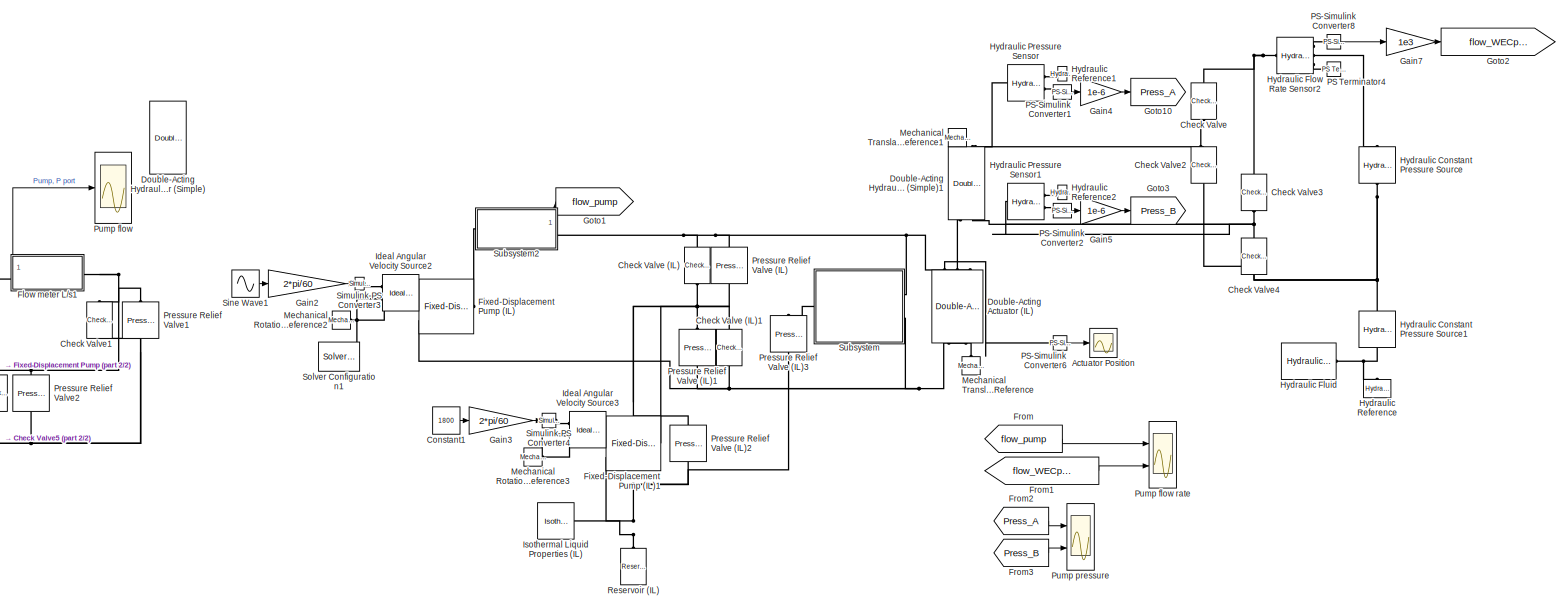
[diagram: root canvas - part 1/2, most of the canvas]
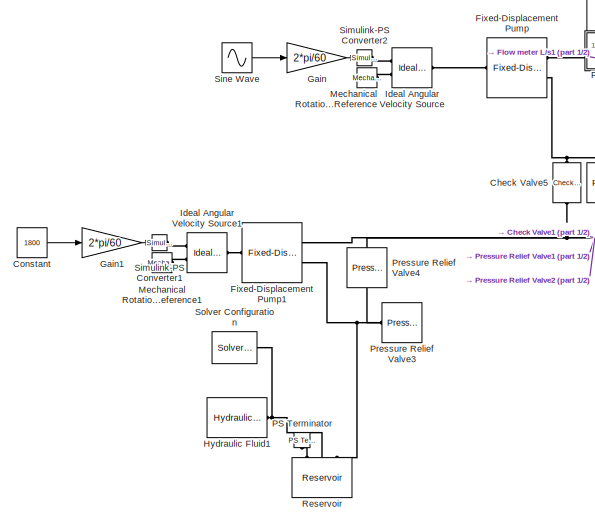
[diagram: root canvas - part 2/2, middle left region]
MODEL slx_42deeb5695fa
KIND model
CONFIG AbsTol = auto
CONFIG EnableMultiTasking = off
CONFIG FixedStep = auto
CONFIG InitFcn = addpath('SCADA'); \ninitFcn_SCADA;
CONFIG MaxStep = auto
CONFIG MinStep = auto
CONFIG RelTol = 1e-3
CONFIG SampleTimeConstraint = Unconstrained
CONFIG SolverName = VariableStepAuto
CONFIG StartTime = 0.0
CONFIG StopTime = 10.0
BLOCK [Scope] Actuator Position
  Floating = off
  NumInputPorts = 1
  Ports = [1]
  ScopeSpecificationString = Simulink.scopes.TimeScopeBlockCfg('CurrentConfiguration', extmgr.ConfigurationSet(extmgr.Configuration('Core','General UI',true),extmgr.Configuration('Core','Source UI',true),extmgr.Configuration('Sources','WiredSimulink',true,'DataLoggingVariableName','ScopeData1'),extmgr.Configuration('Visuals','Time Domain',true,'SerializedDisplays',{struct('MinYLimReal','0.49774','MaxYLimReal','0.50224','YLabe...<+1453ch>
BLOCK [Reference] Check Valve  REF=sh_lib/Valves/Directional Valves/Check Valve
  NameLocation = right
  Ports = [0, 0, 0, 0, 0, 1, 1]
  SourceBlock = sh_lib/Valves/Directional Valves/Check Valve
  SourceProductBaseCode = SH
  SourceType = Check Valve
BLOCK [Reference] Check Valve (IL)  REF=SimscapeFluids_lib/Isothermal Liquid/Valves & Orifices/Directional Control
Valves/Check Valve (IL)
  NameLocation = right
  Ports = [0, 0, 0, 0, 0, 1, 1]
  SourceBlock = SimscapeFluids_lib/Isothermal Liquid/Valves & Orifices/Directional Control\nValves/Check Valve (IL)
  SourceProductBaseCode = SH
  SourceType = Check Valve (IL)
BLOCK [Reference] Check Valve (IL)1  REF=SimscapeFluids_lib/Isothermal Liquid/Valves & Orifices/Directional Control
Valves/Check Valve (IL)
  NameLocation = left
  Ports = [0, 0, 0, 0, 0, 1, 1]
  SourceBlock = SimscapeFluids_lib/Isothermal Liquid/Valves & Orifices/Directional Control\nValves/Check Valve (IL)
  SourceProductBaseCode = SH
  SourceType = Check Valve (IL)
BLOCK [Reference] Check Valve1  REF=sh_lib/Valves/Directional Valves/Check Valve
  Commented = on
  NameLocation = left
  Ports = [0, 0, 0, 0, 0, 1, 1]
  SourceBlock = sh_lib/Valves/Directional Valves/Check Valve
  SourceProductBaseCode = SH
  SourceType = Check Valve
BLOCK [Reference] Check Valve2  REF=sh_lib/Valves/Directional Valves/Check Valve
  NameLocation = right
  Ports = [0, 0, 0, 0, 0, 1, 1]
  SourceBlock = sh_lib/Valves/Directional Valves/Check Valve
  SourceProductBaseCode = SH
  SourceType = Check Valve
BLOCK [Reference] Check Valve3  REF=sh_lib/Valves/Directional Valves/Check Valve
  NameLocation = right
  Ports = [0, 0, 0, 0, 0, 1, 1]
  SourceBlock = sh_lib/Valves/Directional Valves/Check Valve
  SourceProductBaseCode = SH
  SourceType = Check Valve
BLOCK [Reference] Check Valve4  REF=sh_lib/Valves/Directional Valves/Check Valve
  NameLocation = right
  Ports = [0, 0, 0, 0, 0, 1, 1]
  SourceBlock = sh_lib/Valves/Directional Valves/Check Valve
  SourceProductBaseCode = SH
  SourceType = Check Valve
BLOCK [Reference] Check Valve5  REF=sh_lib/Valves/Directional Valves/Check Valve
  Commented = on
  NameLocation = left
  Ports = [0, 0, 0, 0, 0, 1, 1]
  SourceBlock = sh_lib/Valves/Directional Valves/Check Valve
  SourceProductBaseCode = SH
  SourceType = Check Valve
BLOCK [Constant] Constant
  Commented = on
  Value = 1800
BLOCK [Constant] Constant1
  Value = 1800
BLOCK [Reference] Double-Acting Actuator (IL)  REF=SimscapeFluids_lib/Isothermal Liquid/Actuators/Double-Acting
Actuator (IL)
  NameLocation = left
  Ports = [0, 0, 0, 0, 0, 2, 3]
  SourceBlock = SimscapeFluids_lib/Isothermal Liquid/Actuators/Double-Acting\nActuator (IL)
  SourceProductBaseCode = SH
  SourceType = Double-Acting\nActuator (IL)
BLOCK [Reference] Double-Acting Hydraulic Cylinder (Simple)  REF=sh_lib/Hydraulic Cylinders/Double-Acting
Hydraulic Cylinder
(Simple)
  Commented = on
  NameLocation = right
  Ports = [0, 0, 0, 0, 0, 2, 2]
  SourceBlock = sh_lib/Hydraulic Cylinders/Double-Acting\nHydraulic Cylinder\n(Simple)
  SourceProductBaseCode = SH
  SourceType = Double-Acting\nHydraulic Cylinder\n(Simple)
BLOCK [Reference] Double-Acting Hydraulic Cylinder (Simple)1  REF=sh_lib/Hydraulic Cylinders/Double-Acting
Hydraulic Cylinder
(Simple)
  NameLocation = right
  Ports = [0, 0, 0, 0, 0, 2, 2]
  SourceBlock = sh_lib/Hydraulic Cylinders/Double-Acting\nHydraulic Cylinder\n(Simple)
  SourceProductBaseCode = SH
  SourceType = Double-Acting\nHydraulic Cylinder\n(Simple)
BLOCK [Reference] Fixed-Displacement Pump  REF=sh_lib/Pumps and Motors/Fixed-Displacement
Pump
  Commented = on
  Ports = [0, 0, 0, 0, 0, 1, 2]
  SourceBlock = sh_lib/Pumps and Motors/Fixed-Displacement\nPump
  SourceProductBaseCode = SH
  SourceType = Fixed-Displacement\nPump
BLOCK [Reference] Fixed-Displacement Pump (IL)  REF=SimscapeFluids_lib/Isothermal Liquid/Pumps & Motors/Fixed-Displacement
Pump (IL)
  NameLocation = top
  Ports = [0, 0, 0, 0, 0, 1, 3]
  SourceBlock = SimscapeFluids_lib/Isothermal Liquid/Pumps & Motors/Fixed-Displacement\nPump (IL)
  SourceProductBaseCode = SH
  SourceType = Fixed-Displacement\nPump (IL)
BLOCK [Reference] Fixed-Displacement Pump (IL)1  REF=SimscapeFluids_lib/Isothermal Liquid/Pumps & Motors/Fixed-Displacement
Pump (IL)
  NameLocation = top
  Ports = [0, 0, 0, 0, 0, 1, 3]
  SourceBlock = SimscapeFluids_lib/Isothermal Liquid/Pumps & Motors/Fixed-Displacement\nPump (IL)
  SourceProductBaseCode = SH
  SourceType = Fixed-Displacement\nPump (IL)
BLOCK [Reference] Fixed-Displacement Pump1  REF=sh_lib/Pumps and Motors/Fixed-Displacement
Pump
  Commented = on
  Ports = [0, 0, 0, 0, 0, 1, 2]
  SourceBlock = sh_lib/Pumps and Motors/Fixed-Displacement\nPump
  SourceProductBaseCode = SH
  SourceType = Fixed-Displacement\nPump
BLOCK [SubSystem] Flow meter L//s1
  Commented = on
  NameLocation = top
  PortSchema = {"entries":[{"content":{"sides":[{"content":{"connectorIds":["RConn1"]},"type":"ConnectorPlacement.EquallySpacedRectSide","uuid":"d44e5720-9e66-471e-94a4-9637237ee7d4"},{"content":{"connectorIds":["LConn1"],"side":"RIGHT"},"type":"ConnectorPlacement.EquallySpacedRectSide","uuid":"c0bd2997-7dbc-4043-b61a-302206a871bf"},{"content":{"connectorIds":["Out1"],"side":"TOP"},"type":"ConnectorPlacement.Equ...<+395ch>
  Ports = [0, 1, 0, 0, 0, 1, 1]
  ReferencedSubsystem = Flow_meter_L_s
  RequestExecContextInheritance = off
BLOCK [From] From
  GotoTag = flow_pump
BLOCK [From] From1
  GotoTag = flow_WECpump
BLOCK [From] From2
  GotoTag = Press_A
BLOCK [From] From3
  GotoTag = Press_B
BLOCK [Gain] Gain
  Commented = on
  Gain = 2*pi/60
BLOCK [Gain] Gain1
  Commented = on
  Gain = 2*pi/60
BLOCK [Gain] Gain2
  Gain = 2*pi/60
BLOCK [Gain] Gain3
  Gain = 2*pi/60
BLOCK [Gain] Gain4
  Gain = 1e-6
  NameLocation = top
BLOCK [Gain] Gain5
  Gain = 1e-6
  NameLocation = top
BLOCK [Gain] Gain7
  Gain = 1e3
BLOCK [Goto] Goto1
  GotoTag = flow_pump
BLOCK [Goto] Goto10
  GotoTag = Press_A
BLOCK [Goto] Goto2
  GotoTag = flow_WECpump
BLOCK [Goto] Goto3
  GotoTag = Press_B
BLOCK [Reference] Hydraulic Constant Pressure Source  REF=fl_lib/Hydraulic/Hydraulic Sources/Hydraulic Constant
Pressure Source
  NameLocation = right
  Ports = [0, 0, 0, 0, 0, 1, 1]
  SourceBlock = fl_lib/Hydraulic/Hydraulic Sources/Hydraulic Constant\nPressure Source
  SourceProductBaseCode = PW,SS,VE
  SourceType = Hydraulic Constant\nPressure Source
BLOCK [Reference] Hydraulic Constant Pressure Source1  REF=fl_lib/Hydraulic/Hydraulic Sources/Hydraulic Constant
Pressure Source
  NameLocation = right
  Ports = [0, 0, 0, 0, 0, 1, 1]
  SourceBlock = fl_lib/Hydraulic/Hydraulic Sources/Hydraulic Constant\nPressure Source
  SourceProductBaseCode = PW,SS,VE
  SourceType = Hydraulic Constant\nPressure Source
BLOCK [Reference] Hydraulic Flow Rate Sensor2  REF=fl_lib/Hydraulic/Hydraulic Sensors/Hydraulic Flow Rate
Sensor
  Ports = [0, 0, 0, 0, 0, 1, 3]
  SourceBlock = fl_lib/Hydraulic/Hydraulic Sensors/Hydraulic Flow Rate\nSensor
  SourceProductBaseCode = PW,SS,VE
  SourceType = Hydraulic Flow Rate\nSensor
BLOCK [Reference] Hydraulic Fluid  REF=sh_lib/Hydraulic Utilities/Hydraulic Fluid
  Ports = [0, 0, 0, 0, 0, 0, 1]
  SourceBlock = sh_lib/Hydraulic Utilities/Hydraulic Fluid
  SourceProductBaseCode = SH
  SourceType = Hydraulic Fluid
BLOCK [Reference] Hydraulic Fluid1  REF=sh_lib/Hydraulic Utilities/Hydraulic Fluid
  Commented = on
  Ports = [0, 0, 0, 0, 0, 0, 1]
  SourceBlock = sh_lib/Hydraulic Utilities/Hydraulic Fluid
  SourceProductBaseCode = SH
  SourceType = Hydraulic Fluid
BLOCK [Reference] Hydraulic Pressure Sensor  REF=fl_lib/Hydraulic/Hydraulic Sensors/Hydraulic Pressure
Sensor
  Ports = [0, 0, 0, 0, 0, 1, 2]
  SourceBlock = fl_lib/Hydraulic/Hydraulic Sensors/Hydraulic Pressure\nSensor
  SourceProductBaseCode = PW,SS,VE
  SourceType = Hydraulic Pressure\nSensor
BLOCK [Reference] Hydraulic Pressure Sensor1  REF=fl_lib/Hydraulic/Hydraulic Sensors/Hydraulic Pressure
Sensor
  Ports = [0, 0, 0, 0, 0, 1, 2]
  SourceBlock = fl_lib/Hydraulic/Hydraulic Sensors/Hydraulic Pressure\nSensor
  SourceProductBaseCode = PW,SS,VE
  SourceType = Hydraulic Pressure\nSensor
BLOCK [Reference] Hydraulic Reference  REF=fl_lib/Hydraulic/Hydraulic Elements/Hydraulic Reference
  NameLocation = right
  Ports = [0, 0, 0, 0, 0, 1]
  SourceBlock = fl_lib/Hydraulic/Hydraulic Elements/Hydraulic Reference
  SourceProductBaseCode = PW,SS,VE
  SourceType = Hydraulic Reference
BLOCK [Reference] Hydraulic Reference1  REF=fl_lib/Hydraulic/Hydraulic Elements/Hydraulic Reference
  NameLocation = top
  Ports = [0, 0, 0, 0, 0, 1]
  SourceBlock = fl_lib/Hydraulic/Hydraulic Elements/Hydraulic Reference
  SourceProductBaseCode = PW,SS,VE
  SourceType = Hydraulic Reference
BLOCK [Reference] Hydraulic Reference2  REF=fl_lib/Hydraulic/Hydraulic Elements/Hydraulic Reference
  NameLocation = top
  Ports = [0, 0, 0, 0, 0, 1]
  SourceBlock = fl_lib/Hydraulic/Hydraulic Elements/Hydraulic Reference
  SourceProductBaseCode = PW,SS,VE
  SourceType = Hydraulic Reference
BLOCK [Reference] Ideal Angular Velocity Source  REF=fl_lib/Mechanical/Mechanical Sources/Ideal Angular
Velocity Source
  Commented = on
  Ports = [0, 0, 0, 0, 0, 1, 2]
  SourceBlock = fl_lib/Mechanical/Mechanical Sources/Ideal Angular\nVelocity Source
  SourceProductBaseCode = PW,SS,VE
  SourceType = Ideal Angular\nVelocity Source
BLOCK [Reference] Ideal Angular Velocity Source1  REF=fl_lib/Mechanical/Mechanical Sources/Ideal Angular
Velocity Source
  Commented = on
  Ports = [0, 0, 0, 0, 0, 1, 2]
  SourceBlock = fl_lib/Mechanical/Mechanical Sources/Ideal Angular\nVelocity Source
  SourceProductBaseCode = PW,SS,VE
  SourceType = Ideal Angular\nVelocity Source
BLOCK [Reference] Ideal Angular Velocity Source2  REF=fl_lib/Mechanical/Mechanical Sources/Ideal Angular
Velocity Source
  Ports = [0, 0, 0, 0, 0, 1, 2]
  SourceBlock = fl_lib/Mechanical/Mechanical Sources/Ideal Angular\nVelocity Source
  SourceProductBaseCode = PW,SS,VE
  SourceType = Ideal Angular\nVelocity Source
BLOCK [Reference] Ideal Angular Velocity Source3  REF=fl_lib/Mechanical/Mechanical Sources/Ideal Angular
Velocity Source
  Ports = [0, 0, 0, 0, 0, 1, 2]
  SourceBlock = fl_lib/Mechanical/Mechanical Sources/Ideal Angular\nVelocity Source
  SourceProductBaseCode = PW,SS,VE
  SourceType = Ideal Angular\nVelocity Source
BLOCK [Reference] Isothermal Liquid Properties (IL)  REF=fl_lib/Isothermal Liquid/Utilities/Isothermal Liquid
Properties (IL)
  Ports = [0, 0, 0, 0, 0, 0, 1]
  SourceBlock = fl_lib/Isothermal Liquid/Utilities/Isothermal Liquid\nProperties (IL)
  SourceProductBaseCode = PW,SS,VE
  SourceType = Isothermal Liquid\nProperties (IL)
BLOCK [Reference] Mechanical Rotational Reference  REF=fl_lib/Mechanical/Rotational Elements/Mechanical
Rotational Reference
  Commented = on
  Ports = [0, 0, 0, 0, 0, 1]
  SourceBlock = fl_lib/Mechanical/Rotational Elements/Mechanical\nRotational Reference
  SourceProductBaseCode = PW,SS,VE
  SourceType = Mechanical\nRotational Reference
BLOCK [Reference] Mechanical Rotational Reference1  REF=fl_lib/Mechanical/Rotational Elements/Mechanical
Rotational Reference
  Commented = on
  Ports = [0, 0, 0, 0, 0, 1]
  SourceBlock = fl_lib/Mechanical/Rotational Elements/Mechanical\nRotational Reference
  SourceProductBaseCode = PW,SS,VE
  SourceType = Mechanical\nRotational Reference
BLOCK [Reference] Mechanical Rotational Reference2  REF=fl_lib/Mechanical/Rotational Elements/Mechanical
Rotational Reference
  Ports = [0, 0, 0, 0, 0, 1]
  SourceBlock = fl_lib/Mechanical/Rotational Elements/Mechanical\nRotational Reference
  SourceProductBaseCode = PW,SS,VE
  SourceType = Mechanical\nRotational Reference
BLOCK [Reference] Mechanical Rotational Reference3  REF=fl_lib/Mechanical/Rotational Elements/Mechanical
Rotational Reference
  Ports = [0, 0, 0, 0, 0, 1]
  SourceBlock = fl_lib/Mechanical/Rotational Elements/Mechanical\nRotational Reference
  SourceProductBaseCode = PW,SS,VE
  SourceType = Mechanical\nRotational Reference
BLOCK [Reference] Mechanical Translational Reference  REF=fl_lib/Mechanical/Translational
Elements/Mechanical
Translational
Reference
  NameLocation = right
  Ports = [0, 0, 0, 0, 0, 1]
  SourceBlock = fl_lib/Mechanical/Translational\nElements/Mechanical\nTranslational\nReference
  SourceProductBaseCode = PW,SS,VE
  SourceType = Mechanical\nTranslational\nReference
BLOCK [Reference] Mechanical Translational Reference1  REF=fl_lib/Mechanical/Translational
Elements/Mechanical
Translational
Reference
  NameLocation = left
  Ports = [0, 0, 0, 0, 0, 1]
  SourceBlock = fl_lib/Mechanical/Translational\nElements/Mechanical\nTranslational\nReference
  SourceProductBaseCode = PW,SS,VE
  SourceType = Mechanical\nTranslational\nReference
BLOCK [Reference] PS Terminator  REF=fl_lib/Physical Signals/Sinks/PS Terminator
  Commented = on
  NameLocation = right
  Ports = [0, 0, 0, 0, 0, 1]
  SourceBlock = fl_lib/Physical Signals/Sinks/PS Terminator
  SourceProductBaseCode = PW,SS,VE
  SourceType = PS Terminator
BLOCK [Reference] PS Terminator4  REF=fl_lib/Physical Signals/Sinks/PS Terminator
  Ports = [0, 0, 0, 0, 0, 1]
  SourceBlock = fl_lib/Physical Signals/Sinks/PS Terminator
  SourceProductBaseCode = PW,SS,VE
  SourceType = PS Terminator
BLOCK [Reference] PS-Simulink Converter1  REF=nesl_utility/PS-Simulink
Converter
  NameLocation = top
  Ports = [0, 1, 0, 0, 0, 1]
  SourceBlock = nesl_utility/PS-Simulink\nConverter
  SourceProductBaseCode = SS,PW,VE
  SourceType = PS-Simulink\nConverter
BLOCK [Reference] PS-Simulink Converter2  REF=nesl_utility/PS-Simulink
Converter
  NameLocation = top
  Ports = [0, 1, 0, 0, 0, 1]
  SourceBlock = nesl_utility/PS-Simulink\nConverter
  SourceProductBaseCode = SS,PW,VE
  SourceType = PS-Simulink\nConverter
BLOCK [Reference] PS-Simulink Converter6  REF=nesl_utility/PS-Simulink
Converter
  Ports = [0, 1, 0, 0, 0, 1]
  SourceBlock = nesl_utility/PS-Simulink\nConverter
  SourceProductBaseCode = SS,PW,VE
  SourceType = PS-Simulink\nConverter
BLOCK [Reference] PS-Simulink Converter8  REF=nesl_utility/PS-Simulink
Converter
  Ports = [0, 1, 0, 0, 0, 1]
  SourceBlock = nesl_utility/PS-Simulink\nConverter
  SourceProductBaseCode = SS,PW,VE
  SourceType = PS-Simulink\nConverter
BLOCK [Reference] Pressure Relief Valve (IL)  REF=SimscapeFluids_lib/Isothermal Liquid/Valves & Orifices/Pressure Control
Valves/Pressure Relief
Valve (IL)
  NameLocation = left
  Ports = [0, 0, 0, 0, 0, 1, 1]
  SourceBlock = SimscapeFluids_lib/Isothermal Liquid/Valves & Orifices/Pressure Control\nValves/Pressure Relief\nValve (IL)
  SourceProductBaseCode = SH
  SourceType = Pressure Relief\nValve (IL)
BLOCK [Reference] Pressure Relief Valve (IL)1  REF=SimscapeFluids_lib/Isothermal Liquid/Valves & Orifices/Pressure Control
Valves/Pressure Relief
Valve (IL)
  NameLocation = right
  Ports = [0, 0, 0, 0, 0, 1, 1]
  SourceBlock = SimscapeFluids_lib/Isothermal Liquid/Valves & Orifices/Pressure Control\nValves/Pressure Relief\nValve (IL)
  SourceProductBaseCode = SH
  SourceType = Pressure Relief\nValve (IL)
BLOCK [Reference] Pressure Relief Valve (IL)2  REF=SimscapeFluids_lib/Isothermal Liquid/Valves & Orifices/Pressure Control
Valves/Pressure Relief
Valve (IL)
  NameLocation = left
  Ports = [0, 0, 0, 0, 0, 1, 1]
  SourceBlock = SimscapeFluids_lib/Isothermal Liquid/Valves & Orifices/Pressure Control\nValves/Pressure Relief\nValve (IL)
  SourceProductBaseCode = SH
  SourceType = Pressure Relief\nValve (IL)
BLOCK [Reference] Pressure Relief Valve (IL)3  REF=SimscapeFluids_lib/Isothermal Liquid/Valves & Orifices/Pressure Control
Valves/Pressure Relief
Valve (IL)
  NameLocation = left
  Ports = [0, 0, 0, 0, 0, 1, 1]
  SourceBlock = SimscapeFluids_lib/Isothermal Liquid/Valves & Orifices/Pressure Control\nValves/Pressure Relief\nValve (IL)
  SourceProductBaseCode = SH
  SourceType = Pressure Relief\nValve (IL)
BLOCK [Reference] Pressure Relief Valve1  REF=sh_lib/Valves/Pressure Control
Valves/Pressure Relief
Valve
  Commented = on
  NameLocation = right
  Ports = [0, 0, 0, 0, 0, 1, 1]
  SourceBlock = sh_lib/Valves/Pressure Control\nValves/Pressure Relief\nValve
  SourceProductBaseCode = SH
  SourceType = Pressure Relief\nValve
BLOCK [Reference] Pressure Relief Valve2  REF=sh_lib/Valves/Pressure Control
Valves/Pressure Relief
Valve
  Commented = on
  NameLocation = right
  Ports = [0, 0, 0, 0, 0, 1, 1]
  SourceBlock = sh_lib/Valves/Pressure Control\nValves/Pressure Relief\nValve
  SourceProductBaseCode = SH
  SourceType = Pressure Relief\nValve
BLOCK [Reference] Pressure Relief Valve3  REF=sh_lib/Valves/Pressure Control
Valves/Pressure Relief
Valve
  Commented = on
  Ports = [0, 0, 0, 0, 0, 1, 1]
  SourceBlock = sh_lib/Valves/Pressure Control\nValves/Pressure Relief\nValve
  SourceProductBaseCode = SH
  SourceType = Pressure Relief\nValve
BLOCK [Reference] Pressure Relief Valve4  REF=sh_lib/Valves/Pressure Control
Valves/Pressure Relief
Valve
  Commented = on
  NameLocation = right
  Ports = [0, 0, 0, 0, 0, 1, 1]
  SourceBlock = sh_lib/Valves/Pressure Control\nValves/Pressure Relief\nValve
  SourceProductBaseCode = SH
  SourceType = Pressure Relief\nValve
BLOCK [Scope] Pump flow
  Commented = on
  Floating = off
  NumInputPorts = 1
  Ports = [1]
  ScopeSpecificationString = Simulink.scopes.TimeScopeBlockCfg('CurrentConfiguration', extmgr.ConfigurationSet(extmgr.Configuration('Core','General UI',true,'DisplayFullSourceName',false,'ShowMainToolbar',true,'FigureColor',[0.129411764705882 0.129411764705882 0.129411764705882]),extmgr.Configuration('Sources','WiredSimulink',true,'DataLogging',false,'DataLoggingVariableName','ScopeData7','DataLoggingLimitDataPoints',false,'D...<+2421ch>
BLOCK [Scope] Pump flow rate
  Floating = off
  NumInputPorts = 2
  Ports = [2]
  ScopeSpecificationString = Simulink.scopes.TimeScopeBlockCfg('CurrentConfiguration', extmgr.ConfigurationSet(extmgr.Configuration('Core','General UI',true),extmgr.Configuration('Core','Source UI',true),extmgr.Configuration('Sources','WiredSimulink',true,'DataLoggingVariableName','ScopeData2'),extmgr.Configuration('Visuals','Time Domain',true,'SerializedDisplays',{struct('MinYLimReal','-1.27042','MaxYLimReal','2.35189','YLab...<+1841ch>
BLOCK [Scope] Pump pressure
  Floating = off
  NumInputPorts = 2
  Ports = [2]
  ScopeSpecificationString = Simulink.scopes.TimeScopeBlockCfg('CurrentConfiguration', extmgr.ConfigurationSet(extmgr.Configuration('Core','General UI',true),extmgr.Configuration('Core','Source UI',true),extmgr.Configuration('Sources','WiredSimulink',true,'DataLoggingVariableName','ScopeData6'),extmgr.Configuration('Visuals','Time Domain',true,'SerializedDisplays',{struct('MinYLimReal','-0.49356','MaxYLimReal','7.46803','YLab...<+1831ch>
BLOCK [Reference] Reservoir  REF=sh_lib/Hydraulic Utilities/Reservoir
  Commented = on
  NameLocation = right
  Ports = [0, 0, 0, 0, 0, 3]
  SourceBlock = sh_lib/Hydraulic Utilities/Reservoir
  SourceProductBaseCode = SH
  SourceType = Reservoir
BLOCK [Reference] Reservoir (IL)  REF=fl_lib/Isothermal Liquid/Elements/Reservoir (IL)
  NameLocation = right
  Ports = [0, 0, 0, 0, 0, 1]
  SourceBlock = fl_lib/Isothermal Liquid/Elements/Reservoir (IL)
  SourceProductBaseCode = PW,SS,VE
  SourceType = Reservoir (IL)
BLOCK [Reference] Simulink-PS Converter1  REF=nesl_utility/Simulink-PS
Converter
  Commented = on
  Ports = [1, 0, 0, 0, 0, 0, 1]
  SourceBlock = nesl_utility/Simulink-PS\nConverter
  SourceProductBaseCode = SS,PW,VE
  SourceType = Simulink-PS\nConverter
BLOCK [Reference] Simulink-PS Converter2  REF=nesl_utility/Simulink-PS
Converter
  Commented = on
  Ports = [1, 0, 0, 0, 0, 0, 1]
  SourceBlock = nesl_utility/Simulink-PS\nConverter
  SourceProductBaseCode = SS,PW,VE
  SourceType = Simulink-PS\nConverter
BLOCK [Reference] Simulink-PS Converter3  REF=nesl_utility/Simulink-PS
Converter
  Ports = [1, 0, 0, 0, 0, 0, 1]
  SourceBlock = nesl_utility/Simulink-PS\nConverter
  SourceProductBaseCode = SS,PW,VE
  SourceType = Simulink-PS\nConverter
BLOCK [Reference] Simulink-PS Converter4  REF=nesl_utility/Simulink-PS
Converter
  Ports = [1, 0, 0, 0, 0, 0, 1]
  SourceBlock = nesl_utility/Simulink-PS\nConverter
  SourceProductBaseCode = SS,PW,VE
  SourceType = Simulink-PS\nConverter
BLOCK [Sin] Sine Wave
  Amplitude = 2000
  Commented = on
  Ports = [0, 1]
  SampleTime = 0
BLOCK [Sin] Sine Wave1
  Amplitude = 2000
  Frequency = 2
  Ports = [0, 1]
  SampleTime = 0
BLOCK [Reference] Solver Configuration  REF=nesl_utility/Solver
Configuration
  Commented = on
  Ports = [0, 0, 0, 0, 0, 0, 1]
  SourceBlock = nesl_utility/Solver\nConfiguration
  SourceProductBaseCode = SS,PW,VE
  SourceType = Solver\nConfiguration
BLOCK [Reference] Solver Configuration1  REF=nesl_utility/Solver
Configuration
  Ports = [0, 0, 0, 0, 0, 0, 1]
  SourceBlock = nesl_utility/Solver\nConfiguration
  SourceProductBaseCode = SS,PW,VE
  SourceType = Solver\nConfiguration
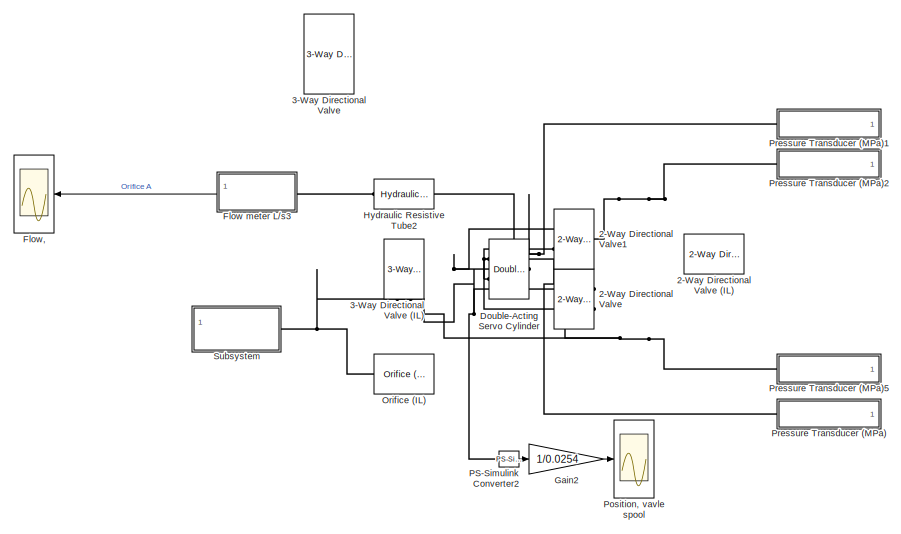
[diagram: Subsystem - part 1/2, top left region]
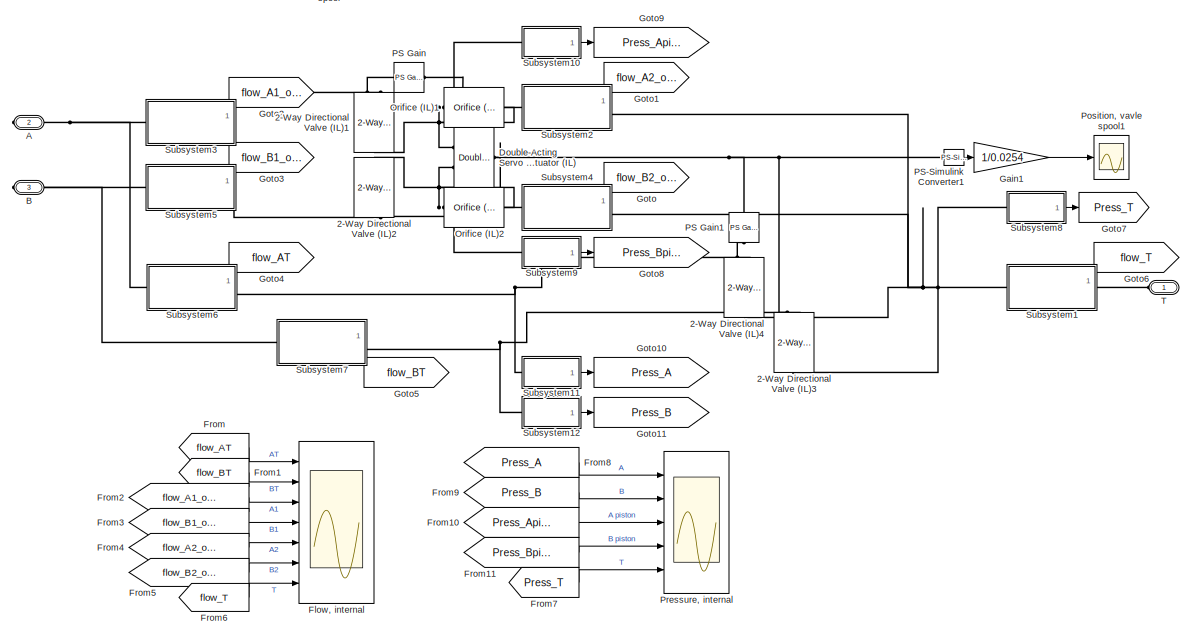
[diagram: Subsystem - part 2/2, full width, bottom band]
BLOCK [SubSystem] Subsystem
  Ports = [0, 0, 0, 0, 0, 1, 2]
  RequestExecContextInheritance = off
BLOCK [Reference] Subsystem/2-Way Directional Valve  REF=sh_lib/Valves/Directional Valves/2-Way Directional
Valve
  Commented = on
  Ports = [0, 0, 0, 0, 0, 2, 1]
  SourceBlock = sh_lib/Valves/Directional Valves/2-Way Directional\nValve
  SourceProductBaseCode = SH
  SourceType = 2-Way Directional\nValve
BLOCK [Reference] Subsystem/2-Way Directional Valve (IL)  REF=SimscapeFluids_lib/Isothermal Liquid/Valves & Orifices/Directional Control
Valves/2-Way Directional
Valve (IL)
  Commented = on
  Ports = [0, 0, 0, 0, 0, 2, 1]
  SourceBlock = SimscapeFluids_lib/Isothermal Liquid/Valves & Orifices/Directional Control\nValves/2-Way Directional\nValve (IL)
  SourceProductBaseCode = SH
  SourceType = 2-Way Directional\nValve (IL)
BLOCK [Reference] Subsystem/2-Way Directional Valve (IL)1  REF=SimscapeFluids_lib/Isothermal Liquid/Valves & Orifices/Directional Control
Valves/2-Way Directional
Valve (IL)
  NameLocation = right
  Ports = [0, 0, 0, 0, 0, 2, 1]
  SourceBlock = SimscapeFluids_lib/Isothermal Liquid/Valves & Orifices/Directional Control\nValves/2-Way Directional\nValve (IL)
  SourceProductBaseCode = SH
  SourceType = 2-Way Directional\nValve (IL)
BLOCK [Reference] Subsystem/2-Way Directional Valve (IL)2  REF=SimscapeFluids_lib/Isothermal Liquid/Valves & Orifices/Directional Control
Valves/2-Way Directional
Valve (IL)
  NameLocation = right
  Ports = [0, 0, 0, 0, 0, 2, 1]
  SourceBlock = SimscapeFluids_lib/Isothermal Liquid/Valves & Orifices/Directional Control\nValves/2-Way Directional\nValve (IL)
  SourceProductBaseCode = SH
  SourceType = 2-Way Directional\nValve (IL)
BLOCK [Reference] Subsystem/2-Way Directional Valve (IL)3  REF=SimscapeFluids_lib/Isothermal Liquid/Valves & Orifices/Directional Control
Valves/2-Way Directional
Valve (IL)
  NameLocation = right
  Ports = [0, 0, 0, 0, 0, 2, 1]
  SourceBlock = SimscapeFluids_lib/Isothermal Liquid/Valves & Orifices/Directional Control\nValves/2-Way Directional\nValve (IL)
  SourceProductBaseCode = SH
  SourceType = 2-Way Directional\nValve (IL)
BLOCK [Reference] Subsystem/2-Way Directional Valve (IL)4  REF=SimscapeFluids_lib/Isothermal Liquid/Valves & Orifices/Directional Control
Valves/2-Way Directional
Valve (IL)
  NameLocation = right
  Ports = [0, 0, 0, 0, 0, 2, 1]
  SourceBlock = SimscapeFluids_lib/Isothermal Liquid/Valves & Orifices/Directional Control\nValves/2-Way Directional\nValve (IL)
  SourceProductBaseCode = SH
  SourceType = 2-Way Directional\nValve (IL)
BLOCK [Reference] Subsystem/2-Way Directional Valve1  REF=sh_lib/Valves/Directional Valves/2-Way Directional
Valve
  Commented = on
  Ports = [0, 0, 0, 0, 0, 2, 1]
  SourceBlock = sh_lib/Valves/Directional Valves/2-Way Directional\nValve
  SourceProductBaseCode = SH
  SourceType = 2-Way Directional\nValve
BLOCK [Reference] Subsystem/3-Way Directional Valve  REF=sh_lib/Valves/Directional Valves/3-Way Directional
Valve
  Commented = on
  NameLocation = top
  Ports = [0, 0, 0, 0, 0, 1, 3]
  SourceBlock = sh_lib/Valves/Directional Valves/3-Way Directional\nValve
  SourceProductBaseCode = SH
  SourceType = 3-Way Directional\nValve
BLOCK [Reference] Subsystem/3-Way Directional Valve (IL)  REF=SimscapeFluids_lib/Isothermal Liquid/Valves & Orifices/Directional Control
Valves/3-Way Directional
Valve (IL)
  Commented = on
  NameLocation = right
  Ports = [0, 0, 0, 0, 0, 2, 2]
  SourceBlock = SimscapeFluids_lib/Isothermal Liquid/Valves & Orifices/Directional Control\nValves/3-Way Directional\nValve (IL)
  SourceProductBaseCode = SH
  SourceType = 3-Way Directional\nValve (IL)
BLOCK [PMIOPort] Subsystem/A
  NameLocation = top
  Port = 2
  Side = Right
BLOCK [PMIOPort] Subsystem/B
  NameLocation = top
  Port = 3
  Side = Right
BLOCK [Reference] Subsystem/Double-Acting Servo Cylinder  REF=sh_lib/Valves/Valve Actuators/Double-Acting Servo
Cylinder
  Commented = on
  NameLocation = top
  Ports = [0, 0, 0, 0, 0, 2, 1]
  SourceBlock = sh_lib/Valves/Valve Actuators/Double-Acting Servo\nCylinder
  SourceProductBaseCode = SH
  SourceType = Double-Acting Servo\nCylinder
BLOCK [Reference] Subsystem/Double-Acting Servo Valve Actuator (IL)  REF=SimscapeFluids_lib/Isothermal Liquid/Valves & Orifices/Valve Actuators &
Forces/Double-Acting Servo
Valve Actuator (IL)
  Ports = [0, 0, 0, 0, 0, 2, 1]
  SourceBlock = SimscapeFluids_lib/Isothermal Liquid/Valves & Orifices/Valve Actuators &\nForces/Double-Acting Servo\nValve Actuator (IL)
  SourceProductBaseCode = SH
  SourceType = Double-Acting Servo\nValve Actuator (IL)
BLOCK [SubSystem] Subsystem/Flow meter L//s3
  Commented = on
  PortSchema = {"entries":[{"content":{"sides":[{"content":{"connectorIds":["Out1"]},"type":"ConnectorPlacement.EquallySpacedRectSide","uuid":"d44e5720-9e66-471e-94a4-9637237ee7d4"},{"content":{"connectorIds":["LConn1"],"side":"RIGHT"},"type":"ConnectorPlacement.EquallySpacedRectSide","uuid":"c0bd2997-7dbc-4043-b61a-302206a871bf"},{"content":{"connectorIds":["RConn1"],"side":"TOP"},"type":"ConnectorPlacement.Equ...<+251ch>
  Ports = [0, 1, 0, 0, 0, 1, 1]
  ReferencedSubsystem = Flow_meter_L_s
  RequestExecContextInheritance = off
BLOCK [Scope] Subsystem/Flow, 
  Commented = on
  Floating = off
  NameLocation = top
  NumInputPorts = 3
  Ports = [3]
  ScopeSpecificationString = Simulink.scopes.TimeScopeBlockCfg('CurrentConfiguration', extmgr.ConfigurationSet(extmgr.Configuration('Core','General UI',true,'FigureColor',[0.129411764705882 0.129411764705882 0.129411764705882]),extmgr.Configuration('Sources','WiredSimulink',true,'DataLoggingVariableName','ScopeData3'),extmgr.Configuration('Visuals','Time Domain',true,'SerializedDisplays',{struct('MinYLimReal','0.25958','MaxYL...<+1775ch>
BLOCK [Scope] Subsystem/Flow, internal
  Floating = off
  NumInputPorts = 7
  Ports = [7]
  ScopeSpecificationString = Simulink.scopes.TimeScopeBlockCfg('CurrentConfiguration', extmgr.ConfigurationSet(extmgr.Configuration('Core','General UI',true),extmgr.Configuration('Core','Source UI',true),extmgr.Configuration('Sources','WiredSimulink',true,'DataLoggingVariableName','ScopeData4'),extmgr.Configuration('Visuals','Time Domain',true,'SerializedDisplays',{struct('MinYLimReal','-0.17915','MaxYLimReal','1.52806','YLab...<+1795ch>
BLOCK [From] Subsystem/From
  GotoTag = flow_AT
BLOCK [From] Subsystem/From1
  GotoTag = flow_BT
BLOCK [From] Subsystem/From10
  GotoTag = Press_Apiston
BLOCK [From] Subsystem/From11
  GotoTag = Press_Bpiston
BLOCK [From] Subsystem/From2
  GotoTag = flow_A1_orifice
BLOCK [From] Subsystem/From3
  GotoTag = flow_B1_orifice
BLOCK [From] Subsystem/From4
  GotoTag = flow_A2_orifice
BLOCK [From] Subsystem/From5
  GotoTag = flow_B2_orifice
BLOCK [From] Subsystem/From6
  GotoTag = flow_T
BLOCK [From] Subsystem/From7
  GotoTag = Press_T
BLOCK [From] Subsystem/From8
  GotoTag = Press_A
BLOCK [From] Subsystem/From9
  GotoTag = Press_B
BLOCK [Gain] Subsystem/Gain1
  Gain = 1/0.0254
  NameLocation = top
BLOCK [Gain] Subsystem/Gain2
  Commented = on
  Gain = 1/0.0254
  NameLocation = top
BLOCK [Goto] Subsystem/Goto
  GotoTag = flow_B2_orifice
BLOCK [Goto] Subsystem/Goto1
  GotoTag = flow_A2_orifice
BLOCK [Goto] Subsystem/Goto10
  GotoTag = Press_A
BLOCK [Goto] Subsystem/Goto11
  GotoTag = Press_B
BLOCK [Goto] Subsystem/Goto2
  GotoTag = flow_A1_orifice
BLOCK [Goto] Subsystem/Goto3
  GotoTag = flow_B1_orifice
BLOCK [Goto] Subsystem/Goto4
  GotoTag = flow_AT
BLOCK [Goto] Subsystem/Goto5
  GotoTag = flow_BT
BLOCK [Goto] Subsystem/Goto6
  GotoTag = flow_T
BLOCK [Goto] Subsystem/Goto7
  GotoTag = Press_T
BLOCK [Goto] Subsystem/Goto8
  GotoTag = Press_Bpiston
BLOCK [Goto] Subsystem/Goto9
  GotoTag = Press_Apiston
BLOCK [Reference] Subsystem/Hydraulic Resistive Tube2  REF=fl_lib/Hydraulic/Hydraulic Elements/Hydraulic Resistive
Tube
  Commented = on
  Ports = [0, 0, 0, 0, 0, 1, 1]
  SourceBlock = fl_lib/Hydraulic/Hydraulic Elements/Hydraulic Resistive\nTube
  SourceProductBaseCode = PW,SS,VE
  SourceType = Hydraulic Resistive\nTube
BLOCK [Reference] Subsystem/Orifice (IL)  REF=SimscapeFluids_lib/Isothermal Liquid/Valves & Orifices/Orifices/Orifice (IL)
  Commented = on
  Ports = [0, 0, 0, 0, 0, 1, 1]
  SourceBlock = SimscapeFluids_lib/Isothermal Liquid/Valves & Orifices/Orifices/Orifice (IL)
  SourceProductBaseCode = SH
  SourceType = Orifice (IL)
BLOCK [Reference] Subsystem/Orifice (IL)1  REF=SimscapeFluids_lib/Isothermal Liquid/Valves & Orifices/Orifices/Orifice (IL)
  NameLocation = top
  Ports = [0, 0, 0, 0, 0, 1, 1]
  SourceBlock = SimscapeFluids_lib/Isothermal Liquid/Valves & Orifices/Orifices/Orifice (IL)
  SourceProductBaseCode = SH
  SourceType = Orifice (IL)
BLOCK [Reference] Subsystem/Orifice (IL)2  REF=SimscapeFluids_lib/Isothermal Liquid/Valves & Orifices/Orifices/Orifice (IL)
  NameLocation = top
  Ports = [0, 0, 0, 0, 0, 1, 1]
  SourceBlock = SimscapeFluids_lib/Isothermal Liquid/Valves & Orifices/Orifices/Orifice (IL)
  SourceProductBaseCode = SH
  SourceType = Orifice (IL)
BLOCK [Reference] Subsystem/PS Gain  REF=fl_lib/Physical Signals/Functions/PS Gain
  NameLocation = top
  Ports = [0, 0, 0, 0, 0, 1, 1]
  SourceBlock = fl_lib/Physical Signals/Functions/PS Gain
  SourceProductBaseCode = PW,SS,VE
  SourceType = PS Gain
BLOCK [Reference] Subsystem/PS Gain1  REF=fl_lib/Physical Signals/Functions/PS Gain
  NameLocation = left
  Ports = [0, 0, 0, 0, 0, 1, 1]
  SourceBlock = fl_lib/Physical Signals/Functions/PS Gain
  SourceProductBaseCode = PW,SS,VE
  SourceType = PS Gain
BLOCK [Reference] Subsystem/PS-Simulink Converter1  REF=nesl_utility/PS-Simulink
Converter
  NameLocation = left
  Ports = [0, 1, 0, 0, 0, 1]
  SourceBlock = nesl_utility/PS-Simulink\nConverter
  SourceProductBaseCode = SS,PW,VE
  SourceType = PS-Simulink\nConverter
BLOCK [Reference] Subsystem/PS-Simulink Converter2  REF=nesl_utility/PS-Simulink
Converter
  Commented = on
  NameLocation = left
  Ports = [0, 1, 0, 0, 0, 1]
  SourceBlock = nesl_utility/PS-Simulink\nConverter
  SourceProductBaseCode = SS,PW,VE
  SourceType = PS-Simulink\nConverter
BLOCK [Scope] Subsystem/Position, vavle spool
  Commented = on
  Floating = off
  NumInputPorts = 1
  Ports = [1]
  ScopeSpecificationString = Simulink.scopes.TimeScopeBlockCfg('CurrentConfiguration', extmgr.ConfigurationSet(extmgr.Configuration('Core','General UI',true,'DisplayFullSourceName',false,'ShowMainToolbar',true,'FigureColor',[0.129411764705882 0.129411764705882 0.129411764705882]),extmgr.Configuration('Sources','WiredSimulink',true,'DataLogging',false,'DataLoggingVariableName','ScopeData2','DataLoggingLimitDataPoints',false,'D...<+2422ch>
BLOCK [Scope] Subsystem/Position, vavle spool1
  Floating = off
  NameLocation = right
  NumInputPorts = 1
  Ports = [1]
  ScopeSpecificationString = Simulink.scopes.TimeScopeBlockCfg('CurrentConfiguration', extmgr.ConfigurationSet(extmgr.Configuration('Core','General UI',true,'FigureColor',[0.129411764705882 0.129411764705882 0.129411764705882]),extmgr.Configuration('Core','Source UI',true),extmgr.Configuration('Sources','WiredSimulink',true,'DataLoggingVariableName','ScopeData5'),extmgr.Configuration('Visuals','Time Domain',true,'SerializedDi...<+2043ch>
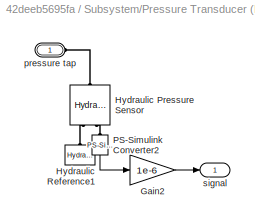
BLOCK [SubSystem] Subsystem/Pressure Transducer (MPa)
  Commented = on
  Ports = [0, 1, 0, 0, 0, 1]
  RequestExecContextInheritance = off
BLOCK [Gain] Subsystem/Pressure Transducer (MPa)/Gain2
  Gain = 1e-6
  NameLocation = top
BLOCK [Reference] Subsystem/Pressure Transducer (MPa)/Hydraulic Pressure Sensor  REF=fl_lib/Hydraulic/Hydraulic Sensors/Hydraulic Pressure
Sensor
  NameLocation = left
  Ports = [0, 0, 0, 0, 0, 1, 2]
  SourceBlock = fl_lib/Hydraulic/Hydraulic Sensors/Hydraulic Pressure\nSensor
  SourceProductBaseCode = PW,SS,VE
  SourceType = Hydraulic Pressure\nSensor
BLOCK [Reference] Subsystem/Pressure Transducer (MPa)/Hydraulic Reference1  REF=fl_lib/Hydraulic/Hydraulic Elements/Hydraulic Reference
  NameLocation = right
  Ports = [0, 0, 0, 0, 0, 1]
  SourceBlock = fl_lib/Hydraulic/Hydraulic Elements/Hydraulic Reference
  SourceProductBaseCode = PW,SS,VE
  SourceType = Hydraulic Reference
BLOCK [Reference] Subsystem/Pressure Transducer (MPa)/PS-Simulink Converter2  REF=nesl_utility/PS-Simulink
Converter
  NameLocation = top
  Ports = [0, 1, 0, 0, 0, 1]
  SourceBlock = nesl_utility/PS-Simulink\nConverter
  SourceProductBaseCode = SS,PW,VE
  SourceType = PS-Simulink\nConverter
BLOCK [PMIOPort] Subsystem/Pressure Transducer (MPa)/pressure tap
  Side = Left
BLOCK [Outport] Subsystem/Pressure Transducer (MPa)/signal
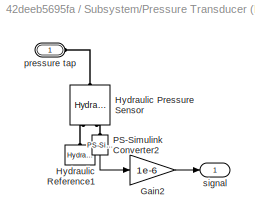
BLOCK [SubSystem] Subsystem/Pressure Transducer (MPa)1
  Commented = on
  Ports = [0, 1, 0, 0, 0, 1]
  RequestExecContextInheritance = off
BLOCK [Gain] Subsystem/Pressure Transducer (MPa)1/Gain2
  Gain = 1e-6
  NameLocation = top
BLOCK [Reference] Subsystem/Pressure Transducer (MPa)1/Hydraulic Pressure Sensor  REF=fl_lib/Hydraulic/Hydraulic Sensors/Hydraulic Pressure
Sensor
  NameLocation = left
  Ports = [0, 0, 0, 0, 0, 1, 2]
  SourceBlock = fl_lib/Hydraulic/Hydraulic Sensors/Hydraulic Pressure\nSensor
  SourceProductBaseCode = PW,SS,VE
  SourceType = Hydraulic Pressure\nSensor
BLOCK [Reference] Subsystem/Pressure Transducer (MPa)1/Hydraulic Reference1  REF=fl_lib/Hydraulic/Hydraulic Elements/Hydraulic Reference
  NameLocation = right
  Ports = [0, 0, 0, 0, 0, 1]
  SourceBlock = fl_lib/Hydraulic/Hydraulic Elements/Hydraulic Reference
  SourceProductBaseCode = PW,SS,VE
  SourceType = Hydraulic Reference
BLOCK [Reference] Subsystem/Pressure Transducer (MPa)1/PS-Simulink Converter2  REF=nesl_utility/PS-Simulink
Converter
  NameLocation = top
  Ports = [0, 1, 0, 0, 0, 1]
  SourceBlock = nesl_utility/PS-Simulink\nConverter
  SourceProductBaseCode = SS,PW,VE
  SourceType = PS-Simulink\nConverter
BLOCK [PMIOPort] Subsystem/Pressure Transducer (MPa)1/pressure tap
  Side = Left
BLOCK [Outport] Subsystem/Pressure Transducer (MPa)1/signal
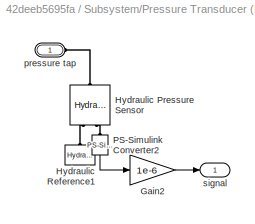
BLOCK [SubSystem] Subsystem/Pressure Transducer (MPa)2
  Commented = on
  Ports = [0, 1, 0, 0, 0, 1]
  RequestExecContextInheritance = off
BLOCK [Gain] Subsystem/Pressure Transducer (MPa)2/Gain2
  Gain = 1e-6
  NameLocation = top
BLOCK [Reference] Subsystem/Pressure Transducer (MPa)2/Hydraulic Pressure Sensor  REF=fl_lib/Hydraulic/Hydraulic Sensors/Hydraulic Pressure
Sensor
  NameLocation = left
  Ports = [0, 0, 0, 0, 0, 1, 2]
  SourceBlock = fl_lib/Hydraulic/Hydraulic Sensors/Hydraulic Pressure\nSensor
  SourceProductBaseCode = PW,SS,VE
  SourceType = Hydraulic Pressure\nSensor
BLOCK [Reference] Subsystem/Pressure Transducer (MPa)2/Hydraulic Reference1  REF=fl_lib/Hydraulic/Hydraulic Elements/Hydraulic Reference
  NameLocation = right
  Ports = [0, 0, 0, 0, 0, 1]
  SourceBlock = fl_lib/Hydraulic/Hydraulic Elements/Hydraulic Reference
  SourceProductBaseCode = PW,SS,VE
  SourceType = Hydraulic Reference
BLOCK [Reference] Subsystem/Pressure Transducer (MPa)2/PS-Simulink Converter2  REF=nesl_utility/PS-Simulink
Converter
  NameLocation = top
  Ports = [0, 1, 0, 0, 0, 1]
  SourceBlock = nesl_utility/PS-Simulink\nConverter
  SourceProductBaseCode = SS,PW,VE
  SourceType = PS-Simulink\nConverter
BLOCK [PMIOPort] Subsystem/Pressure Transducer (MPa)2/pressure tap
  Side = Left
BLOCK [Outport] Subsystem/Pressure Transducer (MPa)2/signal
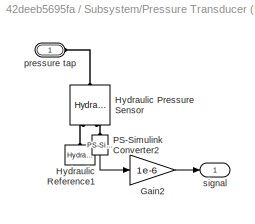
BLOCK [SubSystem] Subsystem/Pressure Transducer (MPa)5
  Commented = on
  Ports = [0, 1, 0, 0, 0, 1]
  RequestExecContextInheritance = off
BLOCK [Gain] Subsystem/Pressure Transducer (MPa)5/Gain2
  Gain = 1e-6
  NameLocation = top
BLOCK [Reference] Subsystem/Pressure Transducer (MPa)5/Hydraulic Pressure Sensor  REF=fl_lib/Hydraulic/Hydraulic Sensors/Hydraulic Pressure
Sensor
  NameLocation = left
  Ports = [0, 0, 0, 0, 0, 1, 2]
  SourceBlock = fl_lib/Hydraulic/Hydraulic Sensors/Hydraulic Pressure\nSensor
  SourceProductBaseCode = PW,SS,VE
  SourceType = Hydraulic Pressure\nSensor
BLOCK [Reference] Subsystem/Pressure Transducer (MPa)5/Hydraulic Reference1  REF=fl_lib/Hydraulic/Hydraulic Elements/Hydraulic Reference
  NameLocation = right
  Ports = [0, 0, 0, 0, 0, 1]
  SourceBlock = fl_lib/Hydraulic/Hydraulic Elements/Hydraulic Reference
  SourceProductBaseCode = PW,SS,VE
  SourceType = Hydraulic Reference
BLOCK [Reference] Subsystem/Pressure Transducer (MPa)5/PS-Simulink Converter2  REF=nesl_utility/PS-Simulink
Converter
  NameLocation = top
  Ports = [0, 1, 0, 0, 0, 1]
  SourceBlock = nesl_utility/PS-Simulink\nConverter
  SourceProductBaseCode = SS,PW,VE
  SourceType = PS-Simulink\nConverter
BLOCK [PMIOPort] Subsystem/Pressure Transducer (MPa)5/pressure tap
  Side = Left
BLOCK [Outport] Subsystem/Pressure Transducer (MPa)5/signal
BLOCK [Scope] Subsystem/Pressure, internal
  Floating = off
  NumInputPorts = 5
  Ports = [5]
  ScopeSpecificationString = Simulink.scopes.TimeScopeBlockCfg('CurrentConfiguration', extmgr.ConfigurationSet(extmgr.Configuration('Core','General UI',true),extmgr.Configuration('Core','Source UI',true),extmgr.Configuration('Sources','WiredSimulink',true,'DataLoggingVariableName','ScopeData3'),extmgr.Configuration('Visuals','Time Domain',true,'SerializedDisplays',{struct('MinYLimReal','-10.46134','MaxYLimReal','101.85843','Y...<+1856ch>
BLOCK [SubSystem] Subsystem/Subsystem
  Commented = on
  NameLocation = top
  Ports = [0, 1, 0, 0, 0, 1, 1]
  ReferencedSubsystem = FlowMeter_L_s
  RequestExecContextInheritance = off
BLOCK [SubSystem] Subsystem/Subsystem1
  PortSchema = {"entries":[{"content":{"sides":[{"content":{"connectorIds":["LConn1"]},"type":"ConnectorPlacement.EquallySpacedRectSide","uuid":"d8206620-c434-45f1-9ac1-322d83a53721"},{"content":{"connectorIds":["RConn1"],"side":"RIGHT"},"type":"ConnectorPlacement.EquallySpacedRectSide","uuid":"1fb77801-81c8-4ad1-bc47-dde06ae9ac20"},{"content":{"connectorIds":["Out1"],"side":"TOP"},"type":"ConnectorPlacement.Equ...<+251ch>  <repeated x7 — deduplicated; at blocks: Subsystem1, Subsystem2, Subsystem3, Subsystem4, Subsystem5, Subsystem6>
  Ports = [0, 1, 0, 0, 0, 1, 1]
  ReferencedSubsystem = FlowMeter_L_s
  RequestExecContextInheritance = off
BLOCK [SubSystem] Subsystem/Subsystem10
  Ports = [0, 1, 0, 0, 0, 1]
  ReferencedSubsystem = pressTransducer_MPa
  RequestExecContextInheritance = off
BLOCK [SubSystem] Subsystem/Subsystem11
  Ports = [0, 1, 0, 0, 0, 1]
  ReferencedSubsystem = pressTransducer_MPa
  RequestExecContextInheritance = off
BLOCK [SubSystem] Subsystem/Subsystem12
  Ports = [0, 1, 0, 0, 0, 1]
  ReferencedSubsystem = pressTransducer_MPa
  RequestExecContextInheritance = off
BLOCK [SubSystem] Subsystem/Subsystem2
  Ports = [0, 1, 0, 0, 0, 1, 1]
  ReferencedSubsystem = FlowMeter_L_s
  RequestExecContextInheritance = off
BLOCK [SubSystem] Subsystem/Subsystem3
  Ports = [0, 1, 0, 0, 0, 1, 1]
  ReferencedSubsystem = FlowMeter_L_s
  RequestExecContextInheritance = off
BLOCK [SubSystem] Subsystem/Subsystem4
  Ports = [0, 1, 0, 0, 0, 1, 1]
  ReferencedSubsystem = FlowMeter_L_s
  RequestExecContextInheritance = off
BLOCK [SubSystem] Subsystem/Subsystem5
  Ports = [0, 1, 0, 0, 0, 1, 1]
  ReferencedSubsystem = FlowMeter_L_s
  RequestExecContextInheritance = off
BLOCK [SubSystem] Subsystem/Subsystem6
  Ports = [0, 1, 0, 0, 0, 1, 1]
  ReferencedSubsystem = FlowMeter_L_s
  RequestExecContextInheritance = off
BLOCK [SubSystem] Subsystem/Subsystem7
  PortSchema = {"entries":[{"content":{"sides":[{"content":{"connectorIds":["LConn1"]},"type":"ConnectorPlacement.EquallySpacedRectSide","uuid":"d8206620-c434-45f1-9ac1-322d83a53721"},{"content":{"connectorIds":["RConn1"],"side":"RIGHT"},"type":"ConnectorPlacement.EquallySpacedRectSide","uuid":"1fb77801-81c8-4ad1-bc47-dde06ae9ac20"},{"content":{"connectorIds":[],"side":"TOP"},"type":"ConnectorPlacement.EquallySp...<+395ch>
  Ports = [0, 1, 0, 0, 0, 1, 1]
  ReferencedSubsystem = FlowMeter_L_s
  RequestExecContextInheritance = off
BLOCK [SubSystem] Subsystem/Subsystem8
  Ports = [0, 1, 0, 0, 0, 1]
  ReferencedSubsystem = pressTransducer_MPa
  RequestExecContextInheritance = off
BLOCK [SubSystem] Subsystem/Subsystem9
  Ports = [0, 1, 0, 0, 0, 1]
  ReferencedSubsystem = pressTransducer_MPa
  RequestExecContextInheritance = off
BLOCK [PMIOPort] Subsystem/T
  Side = Left
BLOCK [SubSystem] Subsystem2
  Ports = [0, 1, 0, 0, 0, 1, 1]
  ReferencedSubsystem = FlowMeter_L_s
  RequestExecContextInheritance = off
LINE Constant1:1 -> Gain3:1
LINE Constant:1 -> Gain1:1
LINE Flow meter L//s1:1 -> Pump flow:1
LINE From1:1 -> Pump flow rate:2
LINE From2:1 -> Pump pressure:1
LINE From3:1 -> Pump pressure:2
LINE From:1 -> Pump flow rate:1
LINE Gain1:1 -> Simulink-PS Converter1:1
LINE Gain2:1 -> Simulink-PS Converter3:1
LINE Gain3:1 -> Simulink-PS Converter4:1
LINE Gain4:1 -> Goto10:1
LINE Gain5:1 -> Goto3:1
LINE Gain7:1 -> Goto2:1
LINE Gain:1 -> Simulink-PS Converter2:1
LINE PS-Simulink Converter1:1 -> Gain4:1
LINE PS-Simulink Converter2:1 -> Gain5:1
LINE PS-Simulink Converter6:1 -> Actuator Position:1
LINE PS-Simulink Converter8:1 -> Gain7:1
LINE Sine Wave1:1 -> Gain2:1
LINE Sine Wave:1 -> Gain:1
LINE Subsystem/Flow meter L//s3:1 -> Subsystem/Flow, :2
LINE Subsystem/From10:1 -> Subsystem/Pressure, internal:3
LINE Subsystem/From11:1 -> Subsystem/Pressure, internal:4
LINE Subsystem/From1:1 -> Subsystem/Flow, internal:2
LINE Subsystem/From2:1 -> Subsystem/Flow, internal:3
LINE Subsystem/From3:1 -> Subsystem/Flow, internal:4
LINE Subsystem/From4:1 -> Subsystem/Flow, internal:5
LINE Subsystem/From5:1 -> Subsystem/Flow, internal:6
LINE Subsystem/From6:1 -> Subsystem/Flow, internal:7
LINE Subsystem/From7:1 -> Subsystem/Pressure, internal:5
LINE Subsystem/From8:1 -> Subsystem/Pressure, internal:1
LINE Subsystem/From9:1 -> Subsystem/Pressure, internal:2
LINE Subsystem/From:1 -> Subsystem/Flow, internal:1
LINE Subsystem/Gain1:1 -> Subsystem/Position, vavle spool1:1
LINE Subsystem/Gain2:1 -> Subsystem/Position, vavle spool:1
LINE Subsystem/PS-Simulink Converter1:1 -> Subsystem/Gain1:1
LINE Subsystem/PS-Simulink Converter2:1 -> Subsystem/Gain2:1
LINE Subsystem/Pressure Transducer (MPa)/Gain2:1 -> Subsystem/Pressure Transducer (MPa)/signal:1
LINE Subsystem/Pressure Transducer (MPa)/PS-Simulink Converter2:1 -> Subsystem/Pressure Transducer (MPa)/Gain2:1
LINE Subsystem/Pressure Transducer (MPa)1/Gain2:1 -> Subsystem/Pressure Transducer (MPa)1/signal:1
LINE Subsystem/Pressure Transducer (MPa)1/PS-Simulink Converter2:1 -> Subsystem/Pressure Transducer (MPa)1/Gain2:1
LINE Subsystem/Pressure Transducer (MPa)2/Gain2:1 -> Subsystem/Pressure Transducer (MPa)2/signal:1
LINE Subsystem/Pressure Transducer (MPa)2/PS-Simulink Converter2:1 -> Subsystem/Pressure Transducer (MPa)2/Gain2:1
LINE Subsystem/Pressure Transducer (MPa)5/Gain2:1 -> Subsystem/Pressure Transducer (MPa)5/signal:1
LINE Subsystem/Pressure Transducer (MPa)5/PS-Simulink Converter2:1 -> Subsystem/Pressure Transducer (MPa)5/Gain2:1
LINE Subsystem/Subsystem10:1 -> Subsystem/Goto9:1
LINE Subsystem/Subsystem11:1 -> Subsystem/Goto10:1
LINE Subsystem/Subsystem12:1 -> Subsystem/Goto11:1
LINE Subsystem/Subsystem1:1 -> Subsystem/Goto6:1
LINE Subsystem/Subsystem2:1 -> Subsystem/Goto1:1
LINE Subsystem/Subsystem3:1 -> Subsystem/Goto2:1
LINE Subsystem/Subsystem4:1 -> Subsystem/Goto:1
LINE Subsystem/Subsystem5:1 -> Subsystem/Goto3:1
LINE Subsystem/Subsystem6:1 -> Subsystem/Goto4:1
LINE Subsystem/Subsystem7:1 -> Subsystem/Goto5:1
LINE Subsystem/Subsystem8:1 -> Subsystem/Goto7:1
LINE Subsystem/Subsystem9:1 -> Subsystem/Goto8:1
LINE Subsystem2:1 -> Goto1:1
PNET net1: Check Valve (IL)1:LConn1 -- Check Valve (IL):LConn1 -- Fixed-Displacement Pump (IL)1:LConn1 -- Pressure Relief Valve (IL)1:RConn1 -- Pressure Relief Valve (IL)2:LConn1 -- Pressure Relief Valve (IL):RConn1
PNET net2: Check Valve (IL)1:RConn1 -- Double-Acting Actuator (IL):LConn2 -- Fixed-Displacement Pump (IL):RConn3 -- Pressure Relief Valve (IL)1:LConn1 -- Subsystem:RConn2
PNET net3: Check Valve (IL):RConn1 -- Double-Acting Actuator (IL):RConn3 -- Pressure Relief Valve (IL):LConn1 -- Subsystem2:RConn1 -- Subsystem:RConn1
PNET net4: Check Valve1:LConn1 -- Check Valve5:LConn1 -- Fixed-Displacement Pump1:RConn1 -- Pressure Relief Valve1:RConn1 -- Pressure Relief Valve2:RConn1 -- Pressure Relief Valve4:LConn1
PNET net5: Check Valve1:RConn1 -- Check Valve5:RConn1 -- Fixed-Displacement Pump:RConn2 -- Flow meter L//s1:RConn1 -- Pressure Relief Valve1:LConn1 -- Pressure Relief Valve2:LConn1
PNET net6: Check Valve2:LConn1 -- Check Valve4:LConn1 -- Hydraulic Constant Pressure Source1:LConn1 -- Hydraulic Constant Pressure Source:RConn1
PNET net7: Check Valve2:RConn1 -- Check Valve:LConn1 -- Double-Acting Hydraulic Cylinder (Simple)1:LConn2 -- Hydraulic Pressure Sensor:LConn1
PNET net8: Check Valve3:LConn1 -- Check Valve4:RConn1 -- Double-Acting Hydraulic Cylinder (Simple)1:RConn2 -- Hydraulic Pressure Sensor1:LConn1
PNET net9: Check Valve3:RConn1 -- Check Valve:RConn1 -- Hydraulic Flow Rate Sensor2:LConn1
PLINE Double-Acting Actuator (IL):LConn1 -- Mechanical Translational Reference:LConn1
PLINE Double-Acting Actuator (IL):RConn1 -- PS-Simulink Converter6:LConn1
PLINE Double-Acting Actuator (IL):RConn2 -- Double-Acting Hydraulic Cylinder (Simple)1:RConn1
PLINE Double-Acting Hydraulic Cylinder (Simple)1:LConn1 -- Mechanical Translational Reference1:LConn1
PLINE Fixed-Displacement Pump (IL)1:RConn1 -- Ideal Angular Velocity Source3:LConn1
PNET net10: Fixed-Displacement Pump (IL)1:RConn2 -- Ideal Angular Velocity Source3:RConn2 -- Mechanical Rotational Reference3:LConn1
PNET net11: Fixed-Displacement Pump (IL)1:RConn3 -- Isothermal Liquid Properties (IL):RConn1 -- Pressure Relief Valve (IL)2:RConn1 -- Pressure Relief Valve (IL)3:RConn1 -- Reservoir (IL):LConn1
PLINE Fixed-Displacement Pump (IL):LConn1 -- Subsystem2:LConn1
PLINE Fixed-Displacement Pump (IL):RConn1 -- Ideal Angular Velocity Source2:LConn1
PNET net12: Fixed-Displacement Pump (IL):RConn2 -- Ideal Angular Velocity Source2:RConn2 -- Mechanical Rotational Reference2:LConn1 -- Solver Configuration1:RConn1
PLINE Fixed-Displacement Pump1:LConn1 -- Ideal Angular Velocity Source1:LConn1
PNET net13: Fixed-Displacement Pump1:RConn2 -- Pressure Relief Valve3:RConn1 -- Pressure Relief Valve4:RConn1 -- Reservoir:LConn3
PLINE Fixed-Displacement Pump:LConn1 -- Ideal Angular Velocity Source:LConn1
PLINE Fixed-Displacement Pump:RConn1 -- Flow meter L//s1:LConn1
PNET net14: Hydraulic Constant Pressure Source1:RConn1 -- Hydraulic Fluid:RConn1 -- Hydraulic Reference:LConn1
PLINE Hydraulic Constant Pressure Source:LConn1 -- Hydraulic Flow Rate Sensor2:RConn2
PLINE Hydraulic Flow Rate Sensor2:RConn1 -- PS-Simulink Converter8:LConn1
PLINE Hydraulic Flow Rate Sensor2:RConn3 -- PS Terminator4:LConn1
PNET net15: Hydraulic Fluid1:RConn1 -- Reservoir:LConn2 -- Solver Configuration:RConn1
PLINE Hydraulic Pressure Sensor1:RConn1 -- Hydraulic Reference2:LConn1
PLINE Hydraulic Pressure Sensor1:RConn2 -- PS-Simulink Converter2:LConn1
PLINE Hydraulic Pressure Sensor:RConn1 -- Hydraulic Reference1:LConn1
PLINE Hydraulic Pressure Sensor:RConn2 -- PS-Simulink Converter1:LConn1
PLINE Ideal Angular Velocity Source1:RConn1 -- Simulink-PS Converter1:RConn1
PLINE Ideal Angular Velocity Source1:RConn2 -- Mechanical Rotational Reference1:LConn1
PLINE Ideal Angular Velocity Source2:RConn1 -- Simulink-PS Converter3:RConn1
PLINE Ideal Angular Velocity Source3:RConn1 -- Simulink-PS Converter4:RConn1
PLINE Ideal Angular Velocity Source:RConn1 -- Simulink-PS Converter2:RConn1
PLINE Ideal Angular Velocity Source:RConn2 -- Mechanical Rotational Reference:LConn1
PLINE PS Terminator:LConn1 -- Reservoir:LConn1
PLINE Pressure Relief Valve (IL)3:LConn1 -- Subsystem:LConn1
PLINE Subsystem/2-Way Directional Valve (IL)1:LConn1 -- Subsystem/PS Gain:RConn1
PLINE Subsystem/2-Way Directional Valve (IL)1:LConn2 -- Subsystem/Subsystem3:RConn1
PNET net16: Subsystem/2-Way Directional Valve (IL)1:RConn1 -- Subsystem/Double-Acting Servo Valve Actuator (IL):LConn1 -- Subsystem/Orifice (IL)1:RConn1 -- Subsystem/Subsystem10:LConn1
PNET net17: Subsystem/2-Way Directional Valve (IL)2:LConn1 -- Subsystem/2-Way Directional Valve (IL)3:LConn1 -- Subsystem/Double-Acting Servo Valve Actuator (IL):RConn1 -- Subsystem/PS Gain1:LConn1 -- Subsystem/PS Gain:LConn1 -- Subsystem/PS-Simulink Converter1:LConn1
PLINE Subsystem/2-Way Directional Valve (IL)2:LConn2 -- Subsystem/Subsystem5:RConn1
PNET net18: Subsystem/2-Way Directional Valve (IL)2:RConn1 -- Subsystem/Double-Acting Servo Valve Actuator (IL):LConn2 -- Subsystem/Orifice (IL)2:RConn1 -- Subsystem/Subsystem9:LConn1
PNET net19: Subsystem/2-Way Directional Valve (IL)3:LConn2 -- Subsystem/Subsystem12:LConn1 -- Subsystem/Subsystem7:RConn1
PNET net20: Subsystem/2-Way Directional Valve (IL)3:RConn1 -- Subsystem/2-Way Directional Valve (IL)4:RConn1 -- Subsystem/Subsystem1:LConn1 -- Subsystem/Subsystem2:RConn1 -- Subsystem/Subsystem4:RConn1 -- Subsystem/Subsystem8:LConn1
PLINE Subsystem/2-Way Directional Valve (IL)4:LConn1 -- Subsystem/PS Gain1:RConn1
PNET net21: Subsystem/2-Way Directional Valve (IL)4:LConn2 -- Subsystem/Subsystem11:LConn1 -- Subsystem/Subsystem6:RConn1
PNET net22: Subsystem/2-Way Directional Valve1:LConn1 -- Subsystem/2-Way Directional Valve:LConn1 -- Subsystem/3-Way Directional Valve (IL):LConn1 -- Subsystem/Double-Acting Servo Cylinder:RConn1 -- Subsystem/PS-Simulink Converter2:LConn1
PNET net23: Subsystem/2-Way Directional Valve1:LConn2 -- Subsystem/Double-Acting Servo Cylinder:LConn2 -- Subsystem/Hydraulic Resistive Tube2:RConn1 -- Subsystem/Pressure Transducer (MPa)1:LConn1
PLINE Subsystem/2-Way Directional Valve1:RConn1 -- Subsystem/Pressure Transducer (MPa)2:LConn1
PNET net24: Subsystem/2-Way Directional Valve:LConn2 -- Subsystem/Double-Acting Servo Cylinder:LConn1 -- Subsystem/Pressure Transducer (MPa):LConn1
PLINE Subsystem/2-Way Directional Valve:RConn1 -- Subsystem/Pressure Transducer (MPa)5:LConn1
PNET net25: Subsystem/3-Way Directional Valve (IL):LConn2 -- Subsystem/Orifice (IL):LConn1 -- Subsystem/Subsystem:LConn1
PNET net26: Subsystem/A:RConn1 -- Subsystem/Subsystem3:LConn1 -- Subsystem/Subsystem6:LConn1
PNET net27: Subsystem/B:RConn1 -- Subsystem/Subsystem5:LConn1 -- Subsystem/Subsystem7:LConn1
PLINE Subsystem/Flow meter L//s3:LConn1 -- Subsystem/Hydraulic Resistive Tube2:LConn1
PLINE Subsystem/Orifice (IL)1:LConn1 -- Subsystem/Subsystem2:LConn1
PLINE Subsystem/Orifice (IL)2:LConn1 -- Subsystem/Subsystem4:LConn1
PLINE Subsystem/Pressure Transducer (MPa)/Hydraulic Pressure Sensor:LConn1 -- Subsystem/Pressure Transducer (MPa)/pressure tap:RConn1
PLINE Subsystem/Pressure Transducer (MPa)/Hydraulic Pressure Sensor:RConn1 -- Subsystem/Pressure Transducer (MPa)/Hydraulic Reference1:LConn1
PLINE Subsystem/Pressure Transducer (MPa)/Hydraulic Pressure Sensor:RConn2 -- Subsystem/Pressure Transducer (MPa)/PS-Simulink Converter2:LConn1
PLINE Subsystem/Pressure Transducer (MPa)1/Hydraulic Pressure Sensor:LConn1 -- Subsystem/Pressure Transducer (MPa)1/pressure tap:RConn1
PLINE Subsystem/Pressure Transducer (MPa)1/Hydraulic Pressure Sensor:RConn1 -- Subsystem/Pressure Transducer (MPa)1/Hydraulic Reference1:LConn1
PLINE Subsystem/Pressure Transducer (MPa)1/Hydraulic Pressure Sensor:RConn2 -- Subsystem/Pressure Transducer (MPa)1/PS-Simulink Converter2:LConn1
PLINE Subsystem/Pressure Transducer (MPa)2/Hydraulic Pressure Sensor:LConn1 -- Subsystem/Pressure Transducer (MPa)2/pressure tap:RConn1
PLINE Subsystem/Pressure Transducer (MPa)2/Hydraulic Pressure Sensor:RConn1 -- Subsystem/Pressure Transducer (MPa)2/Hydraulic Reference1:LConn1
PLINE Subsystem/Pressure Transducer (MPa)2/Hydraulic Pressure Sensor:RConn2 -- Subsystem/Pressure Transducer (MPa)2/PS-Simulink Converter2:LConn1
PLINE Subsystem/Pressure Transducer (MPa)5/Hydraulic Pressure Sensor:LConn1 -- Subsystem/Pressure Transducer (MPa)5/pressure tap:RConn1
PLINE Subsystem/Pressure Transducer (MPa)5/Hydraulic Pressure Sensor:RConn1 -- Subsystem/Pressure Transducer (MPa)5/Hydraulic Reference1:LConn1
PLINE Subsystem/Pressure Transducer (MPa)5/Hydraulic Pressure Sensor:RConn2 -- Subsystem/Pressure Transducer (MPa)5/PS-Simulink Converter2:LConn1
PLINE Subsystem/Subsystem1:RConn1 -- Subsystem/T:RConn1
note: PNET lines group multi-terminal physical nets as a canonical sorted terminal list (undirected conserving connections); 2-terminal nets keep the pairwise PLINE form
